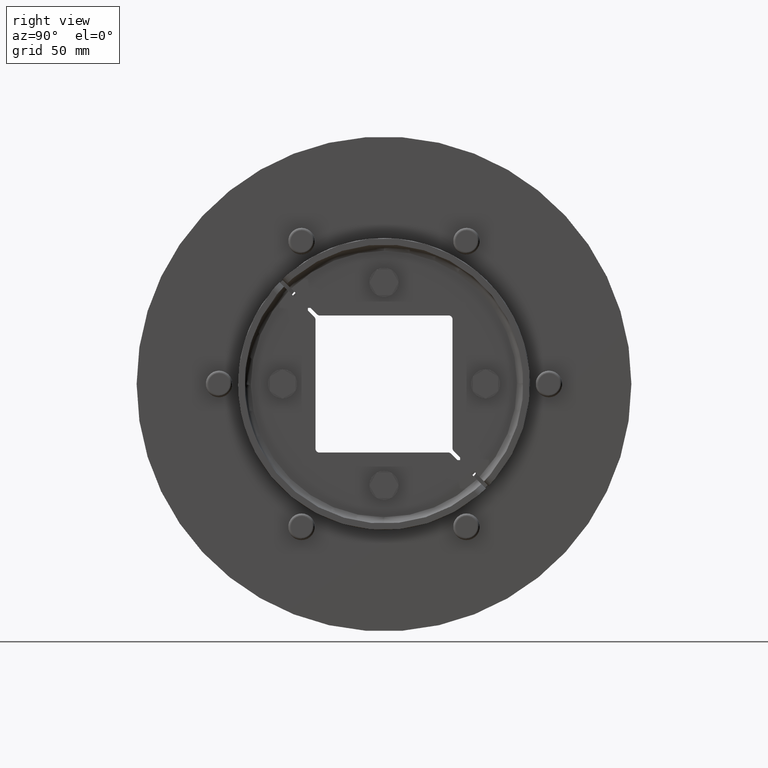
[diagram: clean part render]
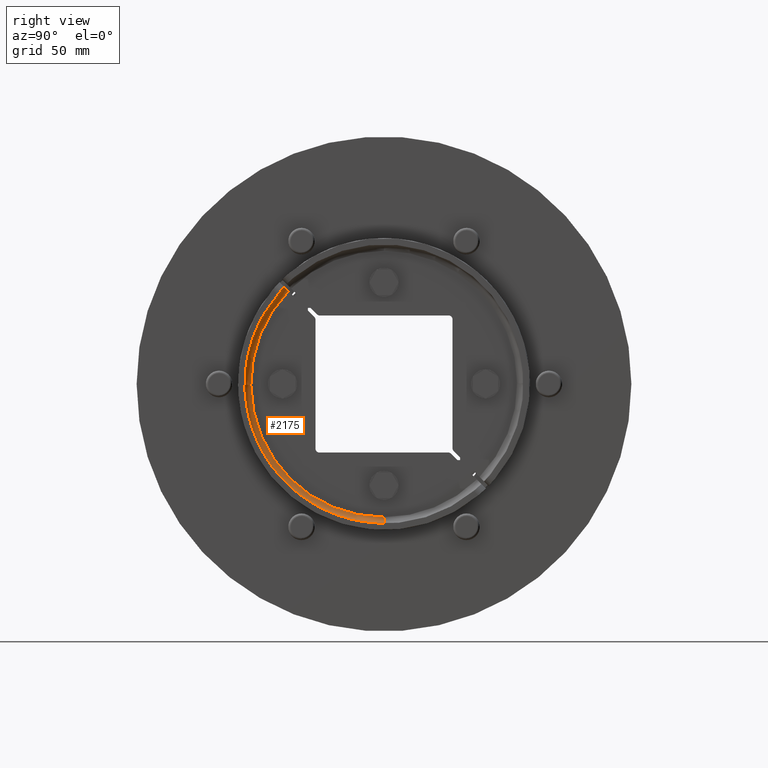
[diagram: same view with one face highlighted and labeled with its STEP entity id]
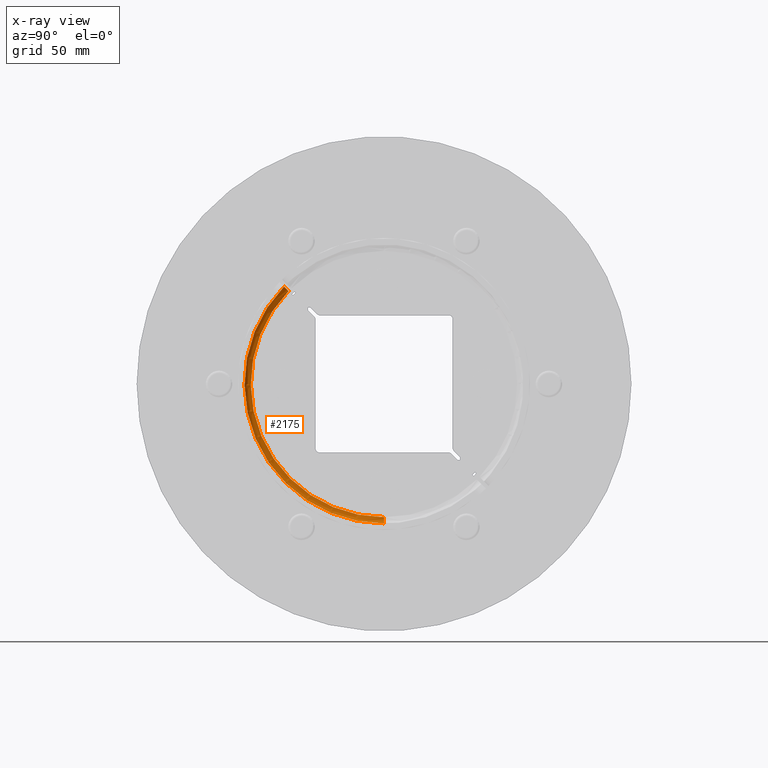
[diagram: x-ray of the same camera — body ghosted, the highlighted face saturated]
A machine part, right view. The second image highlights one B-rep face of the part: STEP entity #2175.
The next image is the same camera in x-ray: the body ghosted, the highlighted face saturated — about 0% of this face is hidden behind the body in this view.
In plain terms, the highlighted face is a freeform B-spline surface patch.
Its self-contained STEP definition (entity closure, byte-faithful):
#2060=CARTESIAN_POINT('',(5.004037639205131,-6.123032E-015,50.000003260508201));
#2061=CARTESIAN_POINT('',(3.558868785822419,-6.122746E-015,49.997669229295973));
#2062=CARTESIAN_POINT('',(2.835609744409078,-6.275965E-015,51.248834614647990));
#2063=CARTESIAN_POINT('',(2.112350702995739,-6.429183E-015,52.500000000000007));
#2064=CARTESIAN_POINT('',(2.835609744409078,-6.582402E-015,53.751165385352024));
#2065=CARTESIAN_POINT('',(3.558868785822419,-6.735620E-015,55.002330770704049));
#2066=CARTESIAN_POINT('',(5.004037639205131,-6.735335E-015,54.999996739491813));
#2067=CARTESIAN_POINT('',(5.004037639205131,-50.000003260508187,50.000003260508180));
#2068=CARTESIAN_POINT('',(3.558868785822419,-49.997669229295965,49.997669229295951));
#2069=CARTESIAN_POINT('',(2.835609744409078,-51.248834614647983,51.248834614647969));
#2070=CARTESIAN_POINT('',(2.112350702995739,-52.500000000000000,52.499999999999993));
#2071=CARTESIAN_POINT('',(2.835609744409078,-53.751165385352024,53.751165385352003));
#2072=CARTESIAN_POINT('',(3.558868785822419,-55.002330770704049,55.002330770704020));
#2073=CARTESIAN_POINT('',(5.004037639205131,-54.999996739491806,54.999996739491799));
#2074=CARTESIAN_POINT('',(5.004037639205131,-50.000003260508201,-6.123032E-015));
#2075=CARTESIAN_POINT('',(3.558868785822419,-49.997669229295973,-6.122746E-015));
#2076=CARTESIAN_POINT('',(2.835609744409078,-51.248834614647990,-6.275965E-015));
#2077=CARTESIAN_POINT('',(2.112350702995739,-52.500000000000007,-6.429183E-015));
#2078=CARTESIAN_POINT('',(2.835609744409078,-53.751165385352024,-6.582402E-015));
#2079=CARTESIAN_POINT('',(3.558868785822419,-55.002330770704049,-6.735620E-015));
#2080=CARTESIAN_POINT('',(5.004037639205131,-54.999996739491813,-6.735335E-015));
#2081=CARTESIAN_POINT('',(5.004037639205131,-50.000003260508180,-50.000003260508187));
#2082=CARTESIAN_POINT('',(3.558868785822419,-49.997669229295951,-49.997669229295965));
#2083=CARTESIAN_POINT('',(2.835609744409078,-51.248834614647969,-51.248834614647983));
#2084=CARTESIAN_POINT('',(2.112350702995739,-52.499999999999993,-52.500000000000000));
#2085=CARTESIAN_POINT('',(2.835609744409078,-53.751165385352003,-53.751165385352024));
#2086=CARTESIAN_POINT('',(3.558868785822419,-55.002330770704020,-55.002330770704049));
#2087=CARTESIAN_POINT('',(5.004037639205131,-54.999996739491799,-54.999996739491806));
#2088=CARTESIAN_POINT('',(5.004037639205131,6.123032E-015,-50.000003260508201));
#2089=CARTESIAN_POINT('',(3.558868785822419,6.122746E-015,-49.997669229295973));
#2090=CARTESIAN_POINT('',(2.835609744409078,6.275965E-015,-51.248834614647990));
#2091=CARTESIAN_POINT('',(2.112350702995739,6.429183E-015,-52.500000000000007));
#2092=CARTESIAN_POINT('',(2.835609744409078,6.582402E-015,-53.751165385352024));
#2093=CARTESIAN_POINT('',(3.558868785822419,6.735620E-015,-55.002330770704049));
#2094=CARTESIAN_POINT('',(5.004037639205131,6.735335E-015,-54.999996739491813));
#2095=CARTESIAN_POINT('',(5.004037639205131,50.000003260508187,-50.000003260508180));
#2096=CARTESIAN_POINT('',(3.558868785822419,49.997669229295965,-49.997669229295951));
#2097=CARTESIAN_POINT('',(2.835609744409078,51.248834614647983,-51.248834614647969));
#2098=CARTESIAN_POINT('',(2.112350702995739,52.500000000000000,-52.499999999999993));
#2099=CARTESIAN_POINT('',(2.835609744409078,53.751165385352024,-53.751165385352003));
#2100=CARTESIAN_POINT('',(3.558868785822419,55.002330770704049,-55.002330770704020));
#2101=CARTESIAN_POINT('',(5.004037639205131,54.999996739491806,-54.999996739491799));
#2102=CARTESIAN_POINT('',(5.004037639205131,50.000003260508201,6.123032E-015));
#2103=CARTESIAN_POINT('',(3.558868785822419,49.997669229295973,6.122746E-015));
#2104=CARTESIAN_POINT('',(2.835609744409078,51.248834614647990,6.275965E-015));
#2105=CARTESIAN_POINT('',(2.112350702995739,52.500000000000007,6.429183E-015));
#2106=CARTESIAN_POINT('',(2.835609744409078,53.751165385352024,6.582402E-015));
#2107=CARTESIAN_POINT('',(3.558868785822419,55.002330770704049,6.735620E-015));
#2108=CARTESIAN_POINT('',(5.004037639205131,54.999996739491813,6.735335E-015));
#2109=CARTESIAN_POINT('',(5.004037639205131,50.000003260508180,50.000003260508187));
#2110=CARTESIAN_POINT('',(3.558868785822419,49.997669229295951,49.997669229295965));
#2111=CARTESIAN_POINT('',(2.835609744409078,51.248834614647969,51.248834614647983));
#2112=CARTESIAN_POINT('',(2.112350702995739,52.499999999999993,52.500000000000000));
#2113=CARTESIAN_POINT('',(2.835609744409078,53.751165385352003,53.751165385352024));
#2114=CARTESIAN_POINT('',(3.558868785822419,55.002330770704020,55.002330770704049));
#2115=CARTESIAN_POINT('',(5.004037639205131,54.999996739491799,54.999996739491806));
#2116=CARTESIAN_POINT('',(5.004037639205131,-6.123032E-015,50.000003260508201));
#2117=CARTESIAN_POINT('',(3.558868785822419,-6.122746E-015,49.997669229295973));
#2118=CARTESIAN_POINT('',(2.835609744409078,-6.275965E-015,51.248834614647990));
#2119=CARTESIAN_POINT('',(2.112350702995739,-6.429183E-015,52.500000000000007));
#2120=CARTESIAN_POINT('',(2.835609744409078,-6.582402E-015,53.751165385352024));
#2121=CARTESIAN_POINT('',(3.558868785822419,-6.735620E-015,55.002330770704049));
#2122=CARTESIAN_POINT('',(5.004037639205131,-6.735335E-015,54.999996739491813));
#2130=(BOUNDED_SURFACE()B_SPLINE_SURFACE(2,2,((#2060,#2067,#2074,#2081,#2088,#2095,#2102,#2109,#2116),(#2061,#2068,#2075,#2082,#2089,#2096,#2103,#2110,#2117),(#2062,#2069,#2076,#2083,#2090,#2097,#2104,#2111,#2118),(#2063,#2070,#2077,#2084,#2091,#2098,#2105,#2112,#2119),(#2064,#2071,#2078,#2085,#2092,#2099,#2106,#2113,#2120),(#2065,#2072,#2079,#2086,#2093,#2100,#2107,#2114,#2121),(#2066,#2073,#2080,#2087,#2094,#2101,#2108,#2115,#2122)),.UNSPECIFIED.,.F.,.T.,.U.)B_SPLINE_SURFACE_WITH_KNOTS((3,2,2,3),(3,2,2,2,3),(-3.143207709973966,-2.094933454521253,-1.046659199068540,0.001615056384173),(0.0,1.570796326794897,3.141592653589793,4.712388980384690,6.283185307179586),.UNSPECIFIED.)GEOMETRIC_REPRESENTATION_ITEM()RATIONAL_B_SPLINE_SURFACE(((1.0,0.707106781186548,1.0,0.707106781186548,1.0,0.707106781186548,1.0,0.707106781186548,1.0),(0.865756102236377,0.612182010744976,0.865756102236377,0.612182010744976,0.865756102236377,0.612182010744976,0.865756102236377,0.612182010744976,0.865756102236377),(1.0,0.707106781186548,1.0,0.707106781186548,1.0,0.707106781186548,1.0,0.707106781186548,1.0),(0.865756102236371,0.612182010744972,0.865756102236371,0.612182010744972,0.865756102236371,0.612182010744972,0.865756102236371,0.612182010744972,0.865756102236371),(1.0,0.707106781186548,1.0,0.707106781186548,1.0,0.707106781186548,1.0,0.707106781186548,1.0),(0.865756102236364,0.612182010744967,0.865756102236364,0.612182010744967,0.865756102236364,0.612182010744967,0.865756102236364,0.612182010744967,0.865756102236364),(1.0,0.707106781186548,1.0,0.707106781186548,1.0,0.707106781186548,1.0,0.707106781186548,1.0)))REPRESENTATION_ITEM('')SURFACE());
#2131=CARTESIAN_POINT('',(2.500000000000000,-5.410370E-015,-52.500000000000014));
#2132=VERTEX_POINT('',#2131);
#2133=CARTESIAN_POINT('',(5.0,-5.716522E-015,-55.000000000000014));
#2134=VERTEX_POINT('',#2133);
#2135=CARTESIAN_POINT('',(5.0,-6.429183E-015,-52.500000000000007));
#2136=DIRECTION('',(0.0,-1.0,0.0));
#2137=DIRECTION('',(0.0,0.0,-1.0));
#2138=AXIS2_PLACEMENT_3D('',#2135,#2136,#2137);
#2139=CIRCLE('',#2138,2.499999999999999);
#2140=EDGE_CURVE('',#2132,#2134,#2139,.T.);
#2141=ORIENTED_EDGE('',*,*,#2140,.F.);
#2142=CARTESIAN_POINT('',(2.500000000000000,-37.649647832852878,36.588987661073062));
#2143=VERTEX_POINT('',#2142);
#2144=CARTESIAN_POINT('',(2.500000000000000,0.0,0.0));
#2145=DIRECTION('',(1.000000000000000,0.0,0.0));
#2146=DIRECTION('',(0.0,0.707106781186547,-0.707106781186547));
#2147=AXIS2_PLACEMENT_3D('',#2144,#2145,#2146);
#2148=CIRCLE('',#2147,52.500000000000007);
#2149=EDGE_CURVE('',#2143,#2132,#2148,.T.);
#2150=ORIENTED_EDGE('',*,*,#2149,.F.);
#2151=CARTESIAN_POINT('',(4.999999999999999,-39.417586996091231,38.356926824311415));
#2152=VERTEX_POINT('',#2151);
#2153=CARTESIAN_POINT('',(2.500000000000000,-37.649647832852878,36.588987661073062));
#2154=CARTESIAN_POINT('',(2.500000000000000,-37.867843103844521,36.807182932064698));
#2155=CARTESIAN_POINT('',(2.572234594232873,-38.124647106044037,37.063986934264221));
#2156=CARTESIAN_POINT('',(2.808389555976872,-38.527811659635660,37.467151487855844));
#2157=CARTESIAN_POINT('',(3.014089824858677,-38.745511863878669,37.684851692098846));
#2158=CARTESIAN_POINT('',(3.450430713488637,-39.054069131546839,37.993408959767017));
#2159=CARTESIAN_POINT('',(3.758273122085227,-39.199526765124730,38.138866593344908));
#2160=CARTESIAN_POINT('',(4.328361012184020,-39.366510646298124,38.305850474518301));
#2161=CARTESIAN_POINT('',(4.691475555949510,-39.417586996091231,38.356926824311415));
#2162=CARTESIAN_POINT('',(4.999999999999999,-39.417586996091231,38.356926824311415));
#2163=B_SPLINE_CURVE_WITH_KNOTS('',3,(#2153,#2154,#2155,#2156,#2157,#2158,#2159,#2160,#2161,#2162),.UNSPECIFIED.,.F.,.U.,(4,2,2,2,4),(-0.370258807413838,-0.277686393969224,-0.185119067635584,-0.092557333215147,0.0),.UNSPECIFIED.);
#2164=EDGE_CURVE('',#2143,#2152,#2163,.T.);
#2165=ORIENTED_EDGE('',*,*,#2164,.T.);
#2166=CARTESIAN_POINT('',(4.999999999999999,0.0,0.0));
#2167=DIRECTION('',(1.000000000000000,0.0,0.0));
#2168=DIRECTION('',(0.0,0.707106781186547,-0.707106781186547));
#2169=AXIS2_PLACEMENT_3D('',#2166,#2167,#2168);
#2170=CIRCLE('',#2169,55.000000000000007);
#2171=EDGE_CURVE('',#2152,#2134,#2170,.T.);
#2172=ORIENTED_EDGE('',*,*,#2171,.T.);
#2173=EDGE_LOOP('',(#2141,#2150,#2165,#2172));
#2174=FACE_OUTER_BOUND('',#2173,.T.);
#2175=ADVANCED_FACE('',(#2174),#2130,.T.);